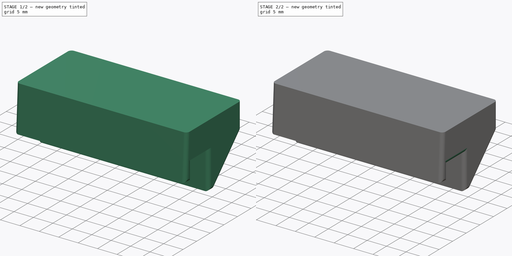
[diagram: build sequence overview — one tinted view per stage of 2, left to right]
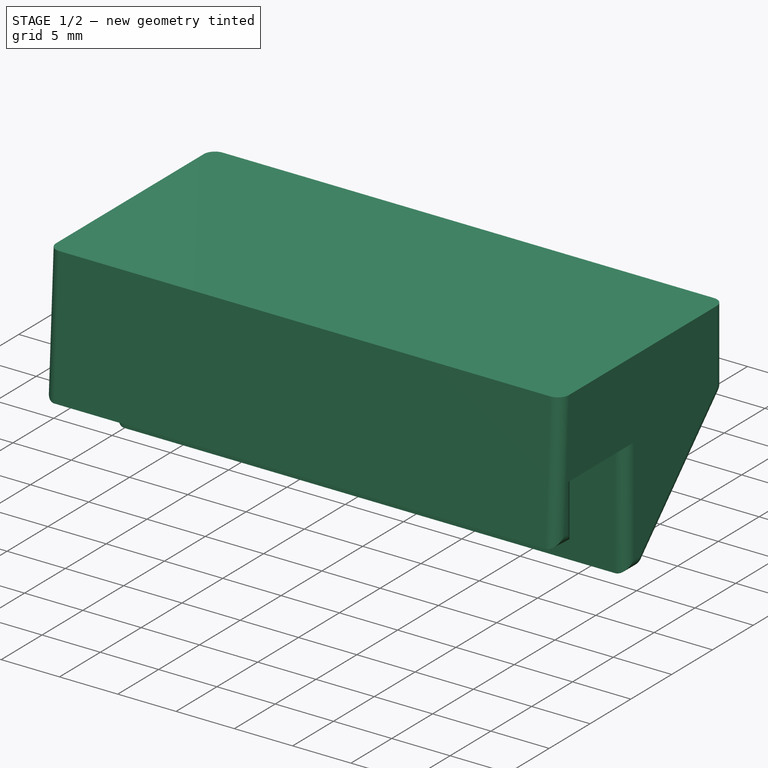
[diagram: stage 1 of 2 — iso view after this stage's code; geometry added in this stage tinted green]
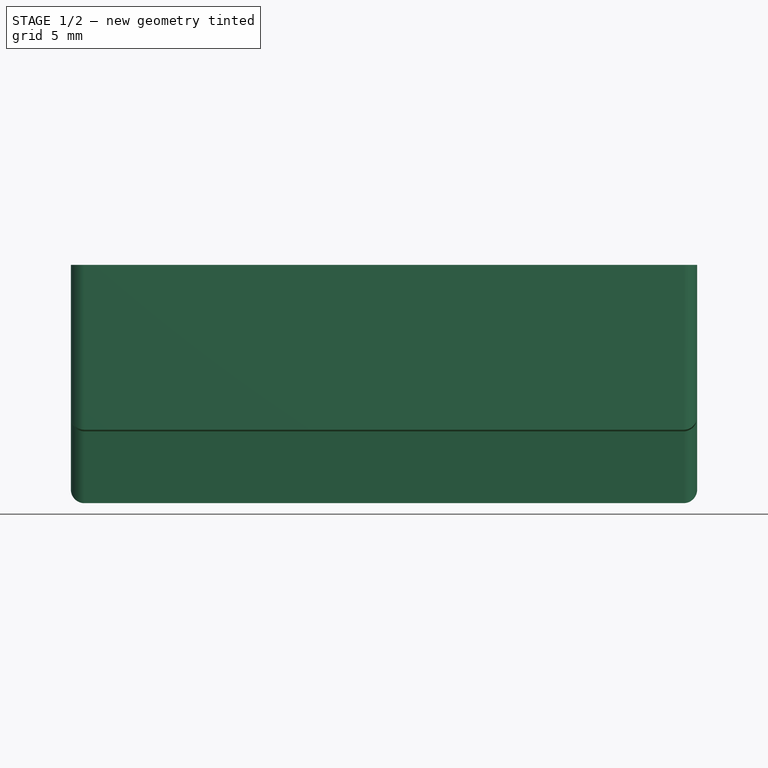
[diagram: stage 1 of 2 — front view after this stage's code; geometry added in this stage tinted green]
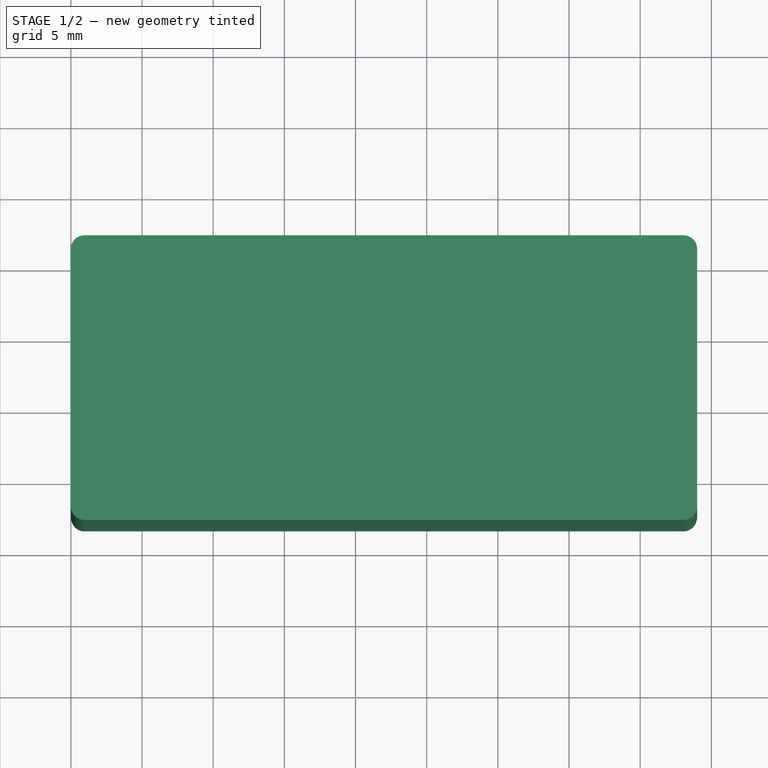
[diagram: stage 1 of 2 — top view after this stage's code; geometry added in this stage tinted green]
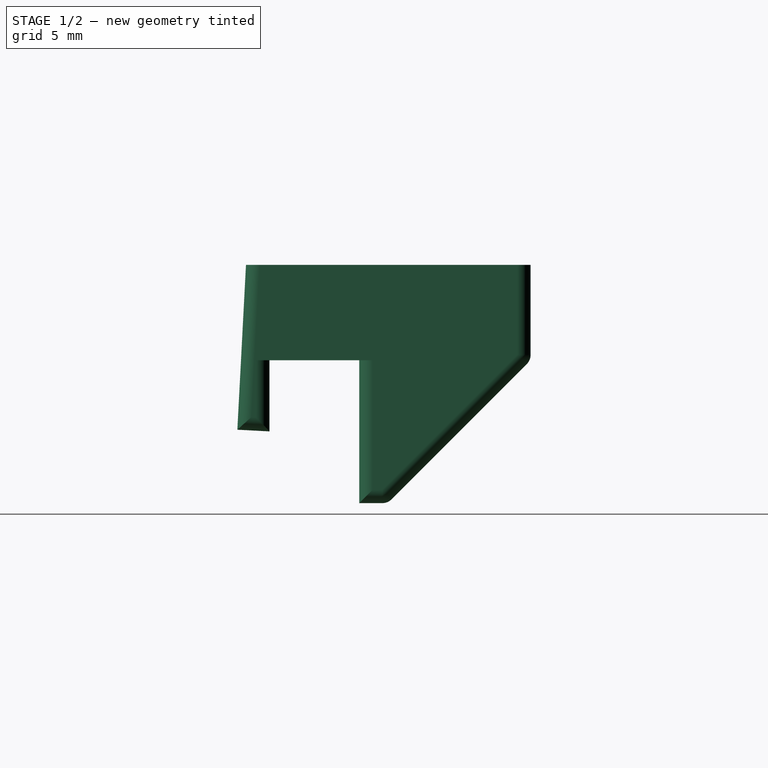
[diagram: stage 1 of 2 — right view after this stage's code; geometry added in this stage tinted green]
FCSTD DOCUMENT  (FreeCAD 0.21R33771 (Git))
Label: WebcamRaiser
License: All rights reserved
LicenseURL: http://en.wikipedia.org/wiki/All_rights_reserved
objects: Sketcher::SketchObject×2, PartDesign::Pad×2, PartDesign::Fillet×2, PartDesign::Body×2
note: 12 computed .brp shape members not serialized (recipe doc carries the construction recipe); baked Part::Feature solids carry a one-line shape summary decoded from their .brp

FEATURE [PartDesign::Body] Body  label="Phillips"
  Group = -> [Sketch,Pad,Fillet]
  Origin = -> Origin
  Tip = -> Fillet
FEATURE [Sketcher::SketchObject] Sketch001
  FullyConstrained = true
  MapMode = 5
  Placement = pos=(0,0,0) rot=(0.57735,0.57735,0.57735;2.0944rad)
  Support = -> [YZ_Plane001]
  sketch-geometry (15):
    g0: LineSegment StartX=-14.5944 StartY=7.73964 StartZ=0 EndX=-15.4056 EndY=-7.73964 EndZ=0
    g1: LineSegment StartX=-15.4056 StartY=-7.73964 StartZ=0 EndX=-13.4056 EndY=-7.84446 EndZ=0
    g2: LineSegment StartX=-13.4056 StartY=-7.84446 StartZ=0 EndX=-12.7985 EndY=3.73964 EndZ=0
    g3: LineSegment StartX=15.4056 StartY=3.73964 StartZ=0 EndX=15.4056 EndY=7.73964 EndZ=0
    g4: LineSegment StartX=15.4056 StartY=7.73964 StartZ=0 EndX=-14.5944 EndY=7.73964 EndZ=0
    g5: LineSegment StartX=-13.4056 StartY=-7.84446 StartZ=0 EndX=-11.1443 EndY=-7.96297 EndZ=0
    g6: LineSegment StartX=-11.1443 StartY=-7.96297 StartZ=0 EndX=-11.1443 EndY=-2.96297 EndZ=0
    g7: LineSegment StartX=7.20148 StartY=-2.96297 StartZ=0 EndX=7.20148 EndY=3.73964 EndZ=0
    g8: LineSegment StartX=-12.7985 StartY=3.73964 StartZ=0 EndX=7.20148 EndY=3.73964 EndZ=0
    g9: LineSegment StartX=7.20148 StartY=3.73964 StartZ=0 EndX=15.4056 EndY=3.73964 EndZ=0
    g10: LineSegment StartX=-11.1443 StartY=-2.96297 StartZ=0 EndX=-13.1443 EndY=-2.85815 EndZ=0
    g11: LineSegment StartX=-11.1443 StartY=-2.96297 StartZ=0 EndX=-4.8443 EndY=-2.96297 EndZ=0
    g12: LineSegment StartX=-4.8443 StartY=-2.96297 StartZ=0 EndX=-4.8443 EndY=-13.006 EndZ=0
    g13: LineSegment StartX=-2.84155 StartY=-13.006 StartZ=0 EndX=7.20148 EndY=-2.96297 EndZ=0
    g14: LineSegment StartX=-2.84155 StartY=-13.006 StartZ=0 EndX=-4.8443 EndY=-13.006 EndZ=0
  constraints (43):
    c: Coincident(g0,g1)
    c: Coincident(g1,g2)
    c: Coincident(g2,g8)
    c: Coincident(g9,g3)
    c: Vertical(g3)
    c: Coincident(g3,g4)
    c: Coincident(g4,g0)
    c: Horizontal(g4)
    c: DistanceY(g3,g3) = 4
    c: DistanceX(g4,g4) = 30
    c: DistanceX(g1,g1) = 2
    c: Coincident(g5,g1)
    c: Coincident(g6,g5)
    c: Coincident(g11,g6)
    c: Coincident(g7,g13)
    c: Vertical(g7)
    c: Parallel(g0,g2)
    c: Perpendicular(g0,g1)
    c: Distance(g2) = 11.6
    c: Parallel(g5,g1)
    c: Distance(g6) = 5
    c: DistanceX(g2,g7) = 20
    c: Vertical(g6)
    c: Coincident(g8,g9)
    c: Horizontal(g8)
    c: Horizontal(g9)
    c: Coincident(g8,g7)
    c: Angle(g2,g8) = 1.62316
    c: Symmetric(g0,g3,g-1)
    c: Coincident(g10,g6)
    c: PointOnObject(g10,g2)
    c: Perpendicular(g2,g10)
    c: Equal(g10,g1)
    c: Coincident(g11,g12)
    c: Horizontal(g11)
    c: Vertical(g12)
    c: DistanceX(g5,g12) = 6.3
    c: PointOnObject(g7,g11)
    c: Angle(g13,g12) = 0.785398
    c: Coincident(g14,g13)
    c: Horizontal(g14)
    c: Coincident(g12,g14)
    c: Equal(g10,g14)
FEATURE [PartDesign::Pad] Pad001
  Direction = (1,-2e-16,3e-16)
  Length = 44
  Length2 = 10
  Placement = pos=(0,0,0) rot=(1,1,1;2.0944rad)
  Profile = -> Sketch001
  ReferenceAxis = -> Sketch001 [N_Axis]
  Type = 0
FEATURE [PartDesign::Fillet] Fillet001
  Base = -> Pad001 [Edge9,Edge3,Edge10,Edge4,Edge16,Edge15,Edge21,Edge18,Edge19,Edge22,Edge14,Edge7,Edge6,Edge25,Edge24,Edge17]
  BaseFeature = -> Pad001
  Placement = pos=(0,0,0) rot=(1,1,1;2.0944rad)
  Radius = 0.95
  SupportTransform = false
  UseAllEdges = false
FEATURE [PartDesign::Body] Body001  label="LGOLED"
  Group = -> [Sketch001,Pad001,Fillet001]
  Origin = -> Origin001
  Tip = -> Fillet001
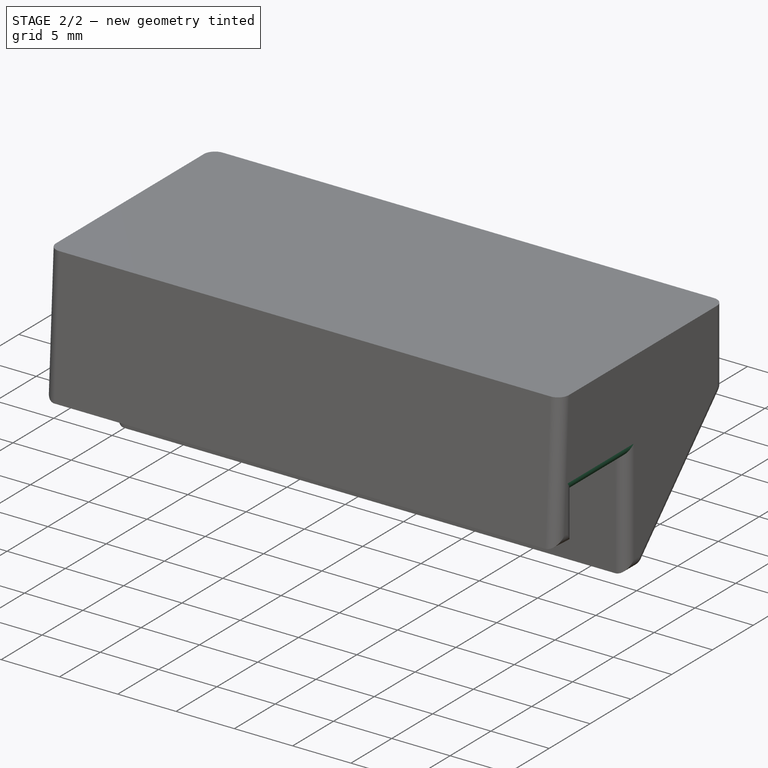
[diagram: stage 2 of 2 — iso view after this stage's code; geometry added in this stage tinted green]
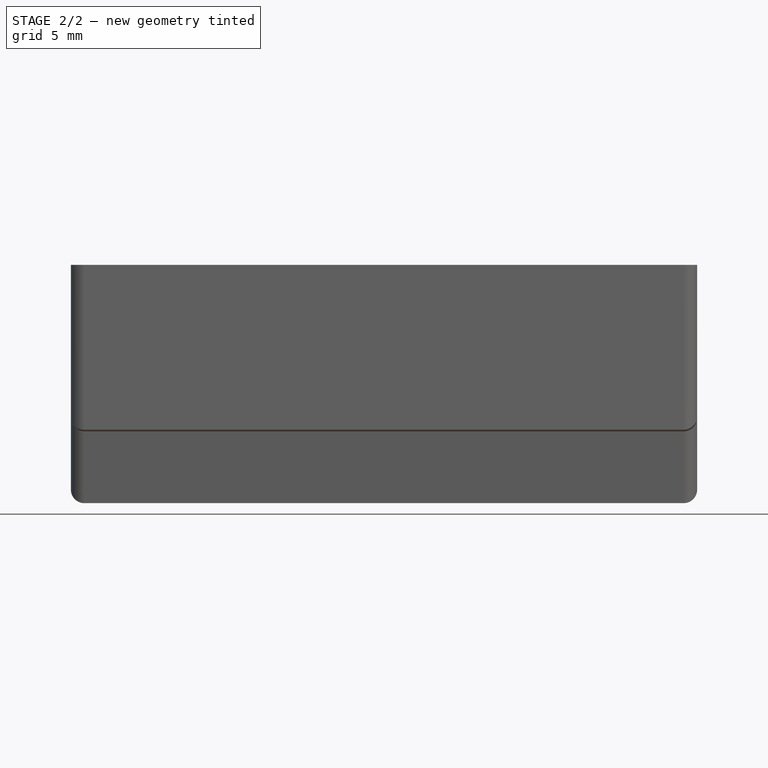
[diagram: stage 2 of 2 — front view after this stage's code; geometry added in this stage tinted green]
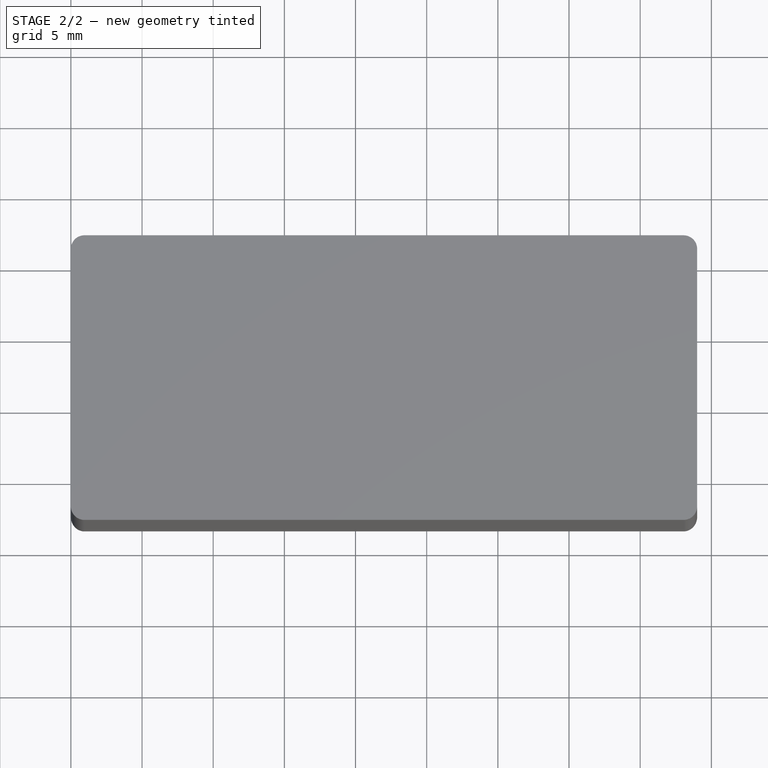
[diagram: stage 2 of 2 — top view after this stage's code; geometry added in this stage tinted green]
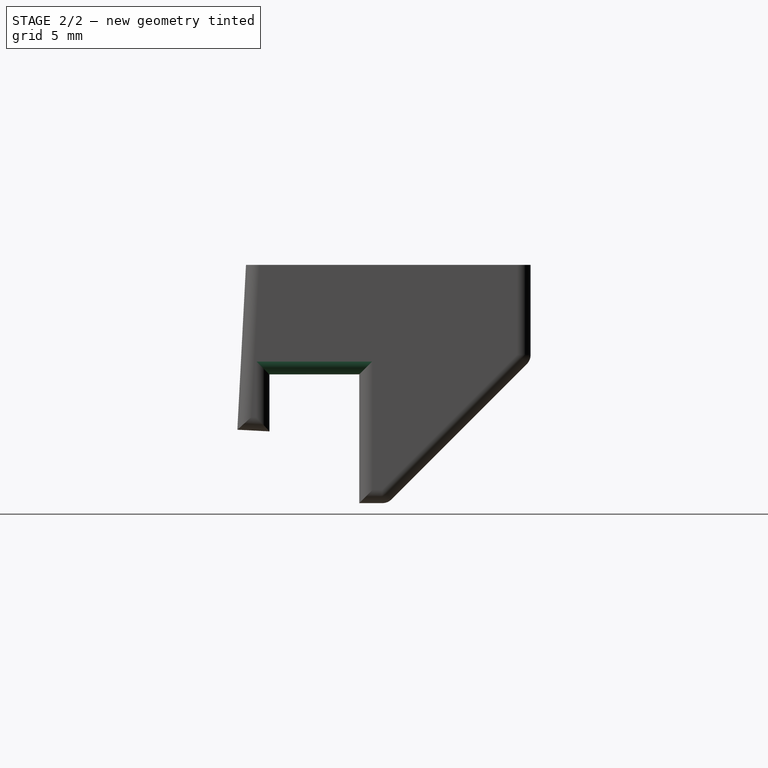
[diagram: stage 2 of 2 — right view after this stage's code; geometry added in this stage tinted green]
FEATURE [Sketcher::SketchObject] Sketch
  FullyConstrained = true
  MapMode = 5
  Placement = pos=(0,0,0) rot=(0.57735,0.57735,0.57735;2.0944rad)
  Support = -> [YZ_Plane]
  sketch-geometry (12):
    g0: LineSegment StartX=-14.5944 StartY=7.73964 StartZ=0 EndX=-15.4056 EndY=-7.73964 EndZ=0
    g1: LineSegment StartX=-15.4056 StartY=-7.73964 StartZ=0 EndX=-13.4056 EndY=-7.84446 EndZ=0
    g2: LineSegment StartX=-13.4056 StartY=-7.84446 StartZ=0 EndX=-12.7985 EndY=3.73964 EndZ=0
    g3: LineSegment StartX=15.4056 StartY=3.73964 StartZ=0 EndX=15.4056 EndY=7.73964 EndZ=0
    g4: LineSegment StartX=15.4056 StartY=7.73964 StartZ=0 EndX=-14.5944 EndY=7.73964 EndZ=0
    g5: LineSegment StartX=-13.4056 StartY=-7.84446 StartZ=0 EndX=-11.1966 EndY=-7.96023 EndZ=0
    g6: LineSegment StartX=-11.1966 StartY=-7.96023 StartZ=0 EndX=-11.1966 EndY=-3.96023 EndZ=0
    g7: LineSegment StartX=-11.1966 StartY=-3.96023 StartZ=0 EndX=-0.79852 EndY=-3.96023 EndZ=0
    g8: LineSegment StartX=-0.79852 StartY=-3.96023 StartZ=0 EndX=-0.79852 EndY=3.73964 EndZ=0
    g9: LineSegment StartX=-12.7985 StartY=3.73964 StartZ=0 EndX=-0.79852 EndY=3.73964 EndZ=0
    g10: LineSegment StartX=-0.79852 StartY=3.73964 StartZ=0 EndX=15.4056 EndY=3.73964 EndZ=0
    g11: LineSegment StartX=-11.1966 StartY=-3.96023 StartZ=0 EndX=-13.1966 EndY=-3.85542 EndZ=0
  constraints (34):
    c: Coincident(g0,g1)
    c: Coincident(g1,g2)
    c: Coincident(g2,g9)
    c: Coincident(g10,g3)
    c: Vertical(g3)
    c: Coincident(g3,g4)
    c: Coincident(g4,g0)
    c: Horizontal(g4)
    c: DistanceY(g3,g3) = 4
    c: DistanceX(g4,g4) = 30
    c: DistanceX(g1,g1) = 2
    c: Coincident(g5,g1)
    c: Coincident(g6,g5)
    c: Coincident(g7,g6)
    c: Horizontal(g7)
    c: Coincident(g8,g7)
    c: Vertical(g8)
    c: Parallel(g0,g2)
    c: Perpendicular(g0,g1)
    c: Distance(g2) = 11.6
    c: Parallel(g5,g1)
    c: Distance(g6) = 4
    c: DistanceX(g2,g8) = 12
    c: Vertical(g6)
    c: Coincident(g9,g10)
    c: Horizontal(g9)
    c: Horizontal(g10)
    c: Coincident(g9,g8)
    c: Angle(g2,g9) = 1.62316
    c: Symmetric(g0,g3,g-1)
    c: Coincident(g11,g6)
    c: PointOnObject(g11,g2)
    c: Perpendicular(g2,g11)
    c: Equal(g11,g1)
FEATURE [PartDesign::Pad] Pad
  Direction = (1,-2e-16,3e-16)
  Length = 44
  Length2 = 10
  Placement = pos=(0,0,0) rot=(0.57735,0.57735,0.57735;2.0944rad)
  Profile = -> Sketch
  ReferenceAxis = -> Sketch [N_Axis]
  Type = 0
FEATURE [PartDesign::Fillet] Fillet
  Base = -> Pad [Edge9,Edge3,Edge10,Edge4,Edge16,Edge15,Edge13,Edge8,Edge12,Edge17,Edge18]
  BaseFeature = -> Pad
  Placement = pos=(0,0,0) rot=(0.57735,0.57735,0.57735;2.0944rad)
  Radius = 0.95
  SupportTransform = false
  UseAllEdges = false
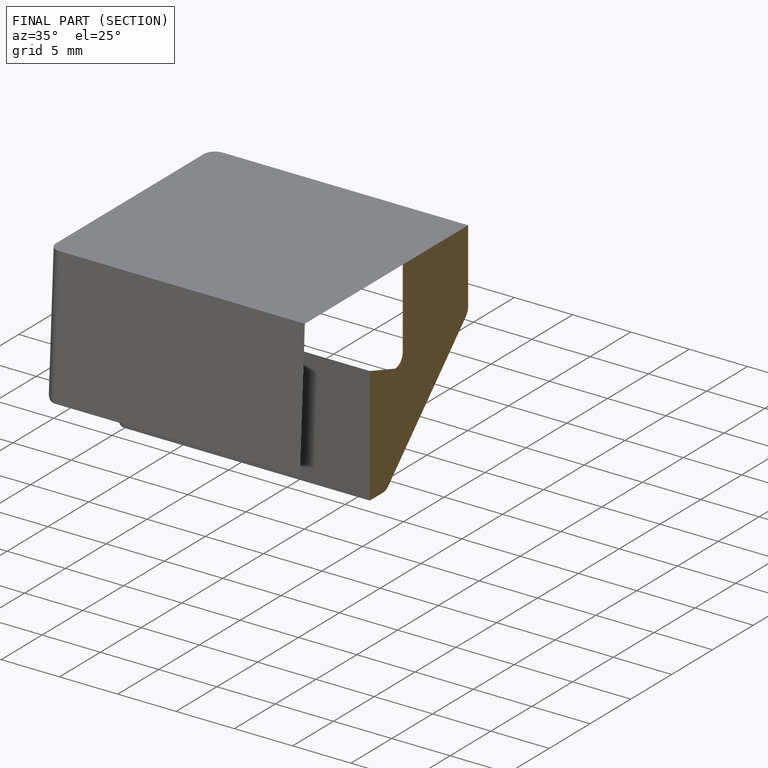
[diagram: finished part — half-section view (interior)]
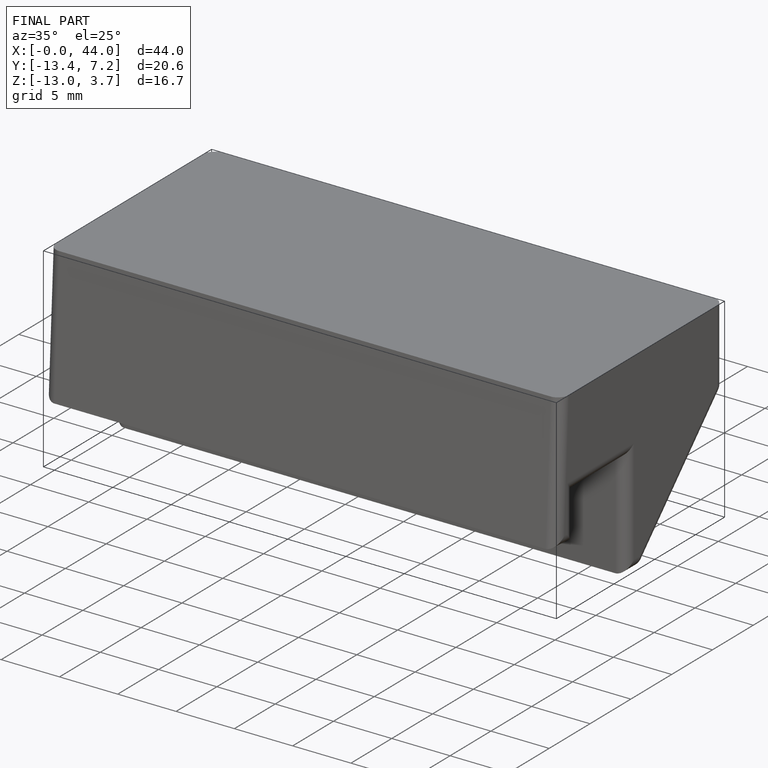
[diagram: finished part — iso view with bounding-box wireframe]
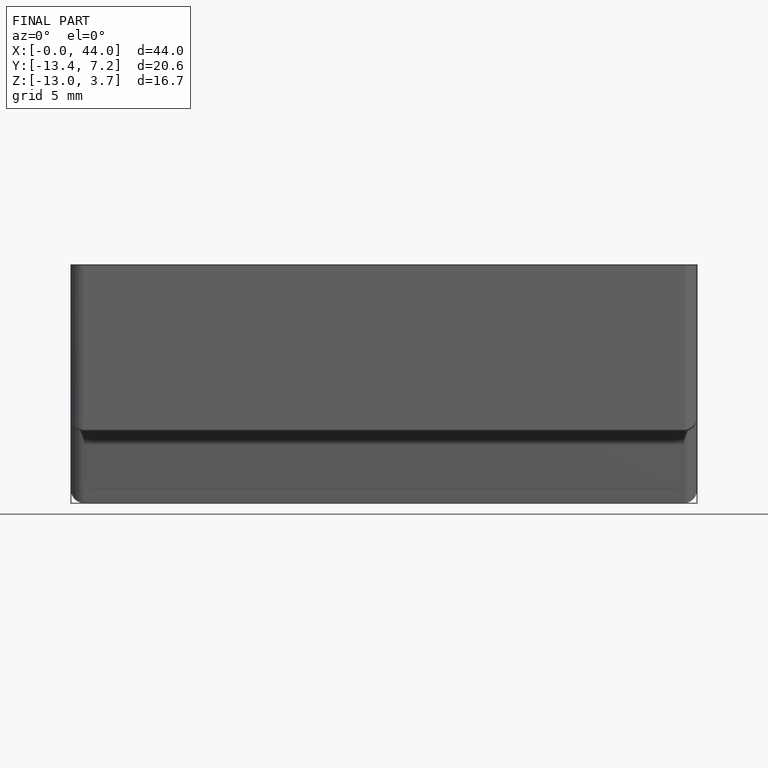
[diagram: finished part — front view with bounding-box wireframe]
